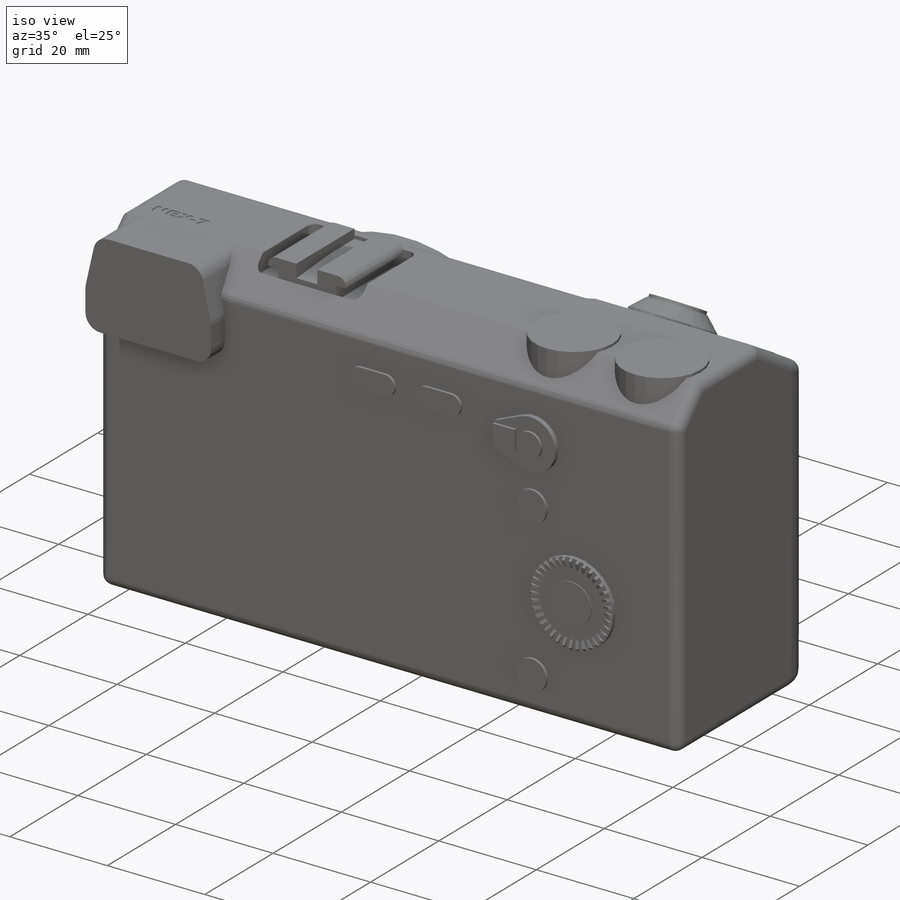
[diagram: iso view]
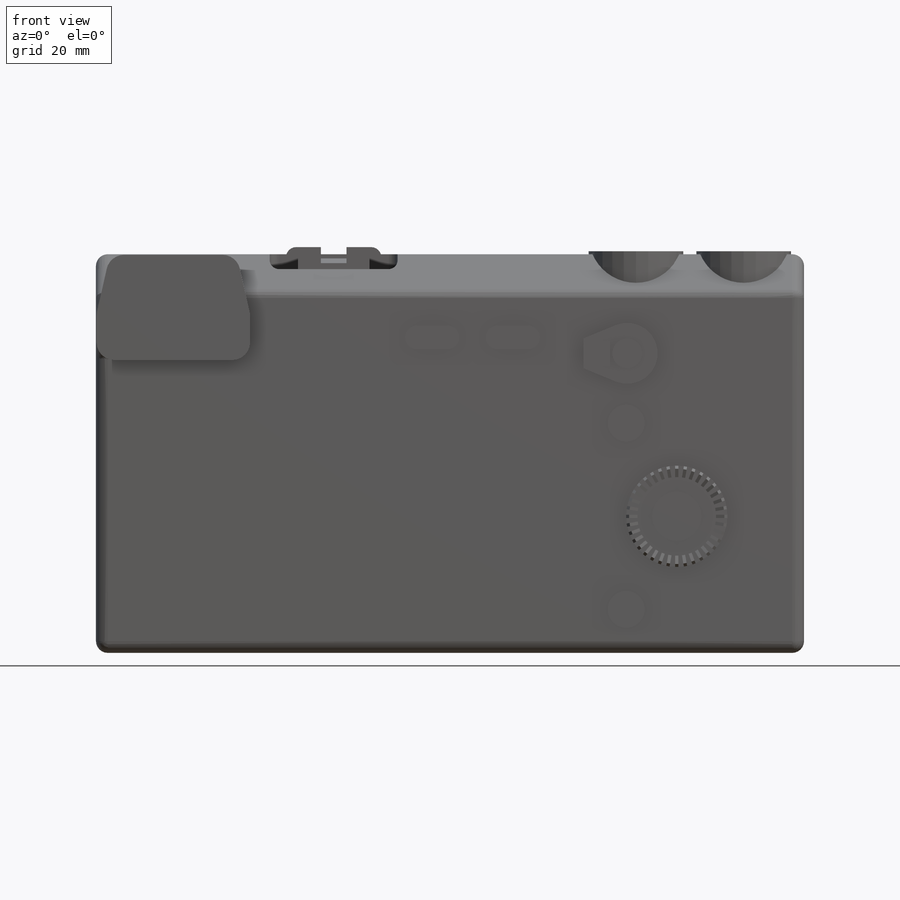
[diagram: front view]
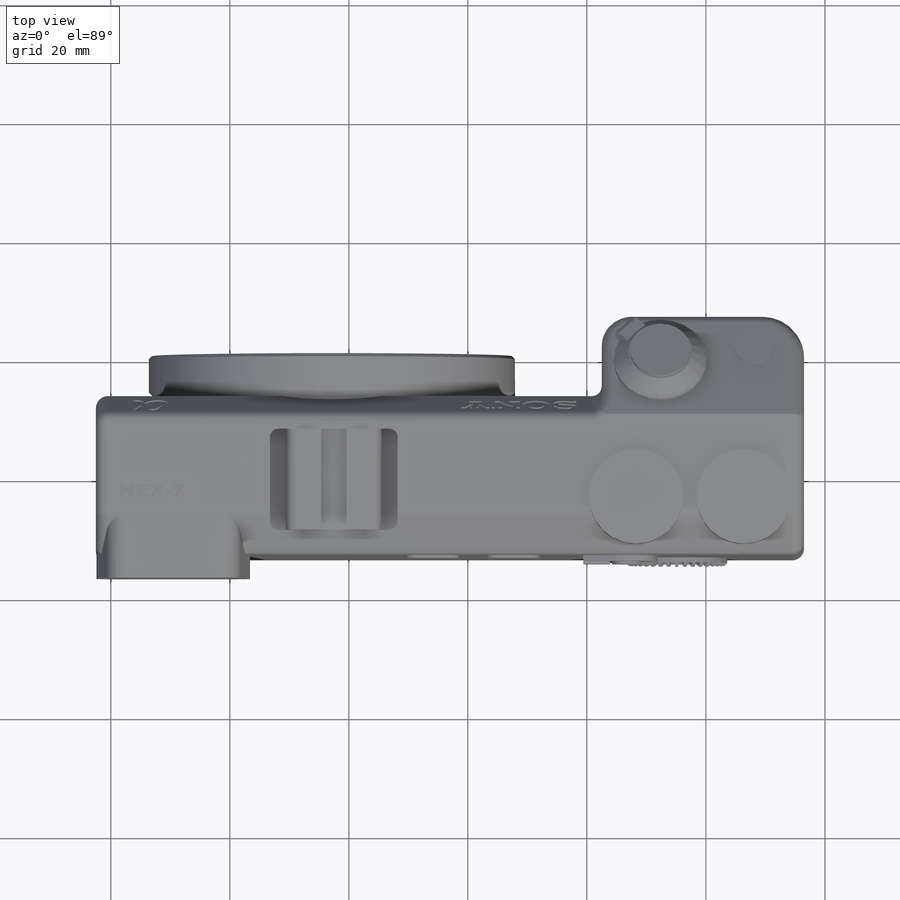
[diagram: top view]
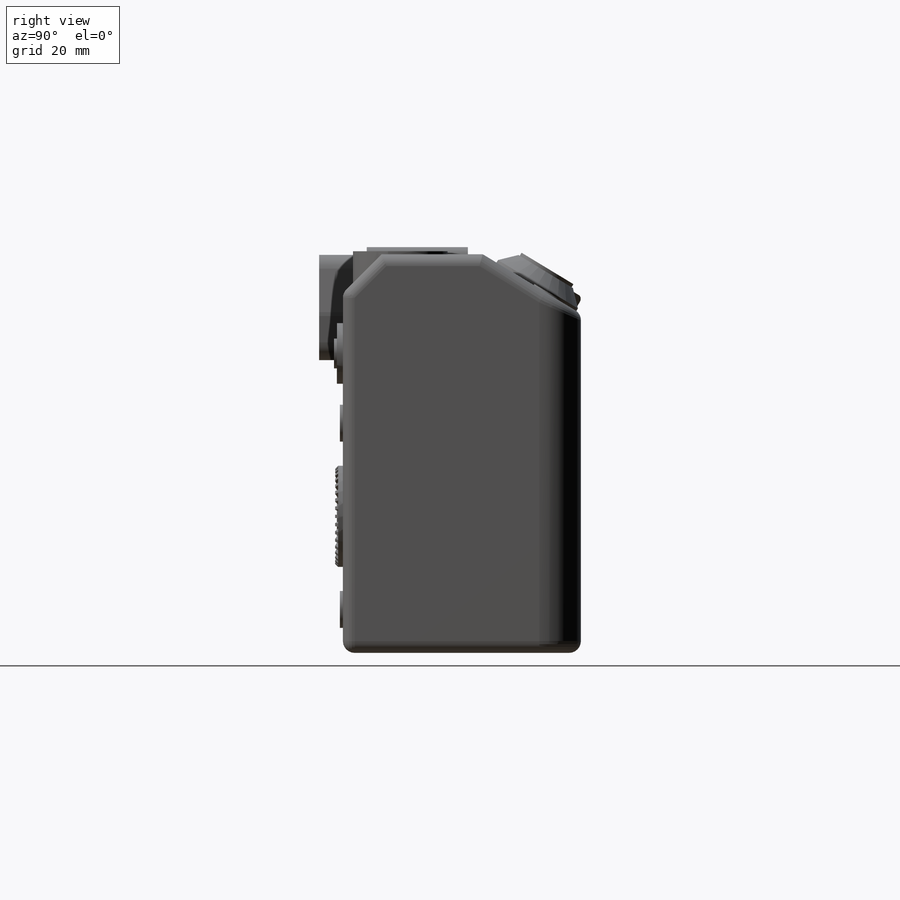
[diagram: right view]
SOLIDWORKS PART (.sldprt)
format: sldprt  version: not decoded by parser v0  size: 1,604,096 bytes
history: native  units: mm
features: sketch x29, extrude x20, cut_extrude x8, fillet x5, plane x5, chamfer x4, pattern_circular x3, material x1 (+13 scaffold rows collapsed)
feature tree (88):
  scaffold x13  (default folders/planes/origin — collapsed)
  material  "Material <not specified>"
  sketch  "Sketch1"  dims[c1.D3=6.3mm c1.D5=5.0mm c1.D6=7.0mm c1.D1=26.6mm c1.D2=85.0mm c1.D4=14.0mm c2.D3=40.0mm c2.D4=34.0mm c2.D5=26.6mm]
  extrude  "Boss-Extrude1"  Depth=67mm
  sketch  "Sketch2"  dims[D1=6.5mm D2=6.5mm D3=16.5mm D4=10.0mm]
  cut_extrude  "Cut-Extrude1"  [1 undecoded]
  sketch  "Sketch3"  dims[D1=15.9mm D2=1.7mm D3=2.2mm D4=2.2mm]
  extrude  "Boss-Extrude2"  Depth=0.5mm
  sketch  "Sketch4"  dims[D1=6.5mm D2=15.7mm D3=2.0mm D4=2.7mm]
  extrude  "Boss-Extrude3"  Depth=3mm
  chamfer  "Chamfer1"  Distance=2.5mm Angle=45deg
  sketch  "Sketch6"  dims[D1=6.5mm D2=4.6mm D3=10.0mm]
  extrude  "Boss-Extrude4"  Depth=0.2mm
  sketch  "Sketch8"  dims[c1.D1=4.2mm c1.D2=2.8mm c1.D3=5.8mm c1.D4=5.35mm c2.D4=45.0deg]
  extrude  "Boss-Extrude5"  Depth=2.5mm
  fillet  "Fillet1"  Radius=1mm
  sketch  "Sketch9"  dims[D1=10.2mm]
  extrude  "Boss-Extrude6"  Depth=0.6mm
  sketch  "Sketch10"  dims[c1.D5=1.5mm c1.D1=21.5mm c1.D2=17.0mm c1.D3=2.0mm c1.D4=29.2mm c2.D3=4.0mm]
  cut_extrude  "Cut-Extrude2"  Depth=3.5mm
  sketch  "Sketch11"  dims[D2=3.3mm D3=12.0mm D1=0.0mm]
  extrude  "Boss-Extrude7"  Depth=2.8mm
  sketch  "Sketch12"  dims[D1=16.0mm D2=4.3mm]
  extrude  "Boss-Extrude8"  Depth=1.9mm
  fillet  "Fillet2"  Radius=1.7mm
  chamfer  "Chamfer2"  Distance=0.8mm
  sketch  "Sketch19"  dims[D1=7.6mm]
  cut_extrude  "Cut-Extrude4"  [1 undecoded]
  sketch  "Sketch13"  dims[D1=59.3mm D2=10.0mm D3=2.0mm]
  extrude  "Boss-Extrude9"  Depth=1.2mm
  sketch  "Sketch15"  dims[D1=61.5mm]
  extrude  "Boss-Extrude10"  Depth=6mm
  chamfer  "Chamfer3"  Distance=1.2mm Angle=45deg
  chamfer  "Chamfer4"  Distance=0.5mm Angle=45deg
  sketch  "Sketch16"  dims[D1=47.0mm]
  cut_extrude  "Cut-Extrude3"  Depth=6mm
  sketch  "Sketch17"  dims[D3=9.8mm D4=5.75mm D5=2.9mm D6=8.45mm D1=0.0mm D2=0.0mm]
  extrude  "Boss-Extrude11"  Depth=3.4mm
  sketch  "Sketch18"  dims[D1=1.5mm D2=0.0mm]
  extrude  "Boss-Extrude12"  Depth=3mm
  fillet  "Fillet3"  Radius=1.7mm
  sketch  "Sketch20"
  cut_extrude  "Cut-Extrude5"  Depth=0.2mm
  sketch  "Sketch22"  dims[D1=2.75mm D2=10.3mm D3=2.7mm D4=4.1mm]
  cut_extrude  "Cut-Extrude6"  Depth=0.2mm
  sketch  "Sketch23"  dims[c1.D7=6.2mm c1.D1=4.0mm c1.D2=9.1mm c1.D4=54.2mm c1.D5=5.1mm c2.D4=5.5mm c2.D5=6.0mm c2.D6=22.65mm c2.D8=37.5mm c2.D9=4.2mm c2.D10=33.0mm c2.D3=2.0]
  extrude  "Boss-Extrude13"  Depth=0.5mm
  sketch  "Sketch24"  dims[D1=17.0mm]
  extrude  "Boss-Extrude14"  Depth=0.8mm
  plane  "Plane1"  Offset=22.95mm
  sketch  "Sketch27"  dims[c1.D1=0.5mm c1.D2=0.5mm c1.D3=1.9mm c2.D1=0.5mm]
  extrude  "Boss-Extrude15"  Depth=0.55mm
  pattern_circular  "CirPattern1"  Count=36 Angle=10deg
  sketch  "Sketch28"  dims[D1=8.3mm]
  extrude  "Boss-Extrude16"  Depth=0.2mm
  sketch  "Sketch29"  dims[D2=10.25mm D1=5.0mm D3=12.5mm D5=7.3mm D7=3.5mm D4=0.0mm D6=0.0mm]
  extrude  "Boss-Extrude17"  Depth=1mm
  sketch  "Sketch30"  dims[D1=4.3mm D2=4.5mm]
  extrude  "Boss-Extrude18"  Depth=0.5mm
  sketch  "Sketch31"  dims[D1=5.0mm]
  extrude  "Boss-Extrude19"  Depth=0.5mm
  sketch  "Sketch32"  dims[D1=25.8mm D2=7.75mm D3=17.7mm D4=0.1mm D5=0.1mm D6=10.2mm]
  extrude  "Boss-Extrude20"  Depth=4mm
  fillet  "Fillet4"  Radius=3mm
  fillet  "Fillet5"  Radius=2mm
  pattern_circular  "Axis2"  [2 undecoded]
  sketch  "Sketch33"  dims[D1=6.5mm D2=22.6mm]
  cut_extrude  "Cut-Extrude7"  Depth=7.3mm
  sketch  "Sketch34"
  plane  "Plane4"
  plane  "Plane5"
  pattern_circular  "Axis3"  [2 undecoded]
  plane  "MidPlane"
  plane  "MidVert"
  sketch  "Sketch35"  dims[c1.D4=1.7526mm c1.D1=~2.306781mm c1.D2=~3.872097mm c2.D1=3.5052mm c2.D2=9.525mm c2.D3=2.6289mm c2.D4=21.4122mm]
  cut_extrude  "Cut-Extrude8"  Depth=0.508mm
decode coverage: 63 of 69 modeling features carry decoded parameters
note: ~ marks probable driven/reference dimensions
note: 6 parameter values undecoded
note: suppression state not decoded; provenance and decode notes live in map.json
